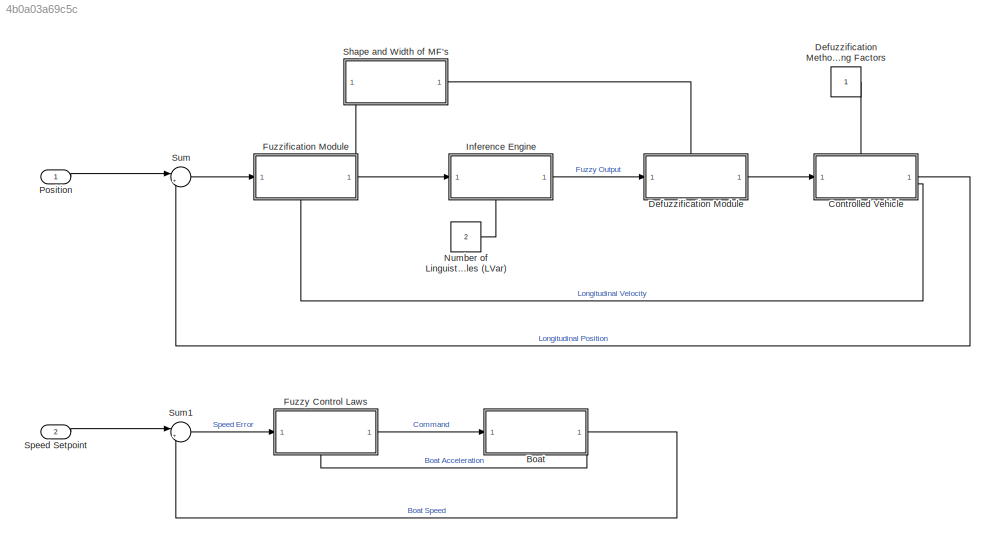
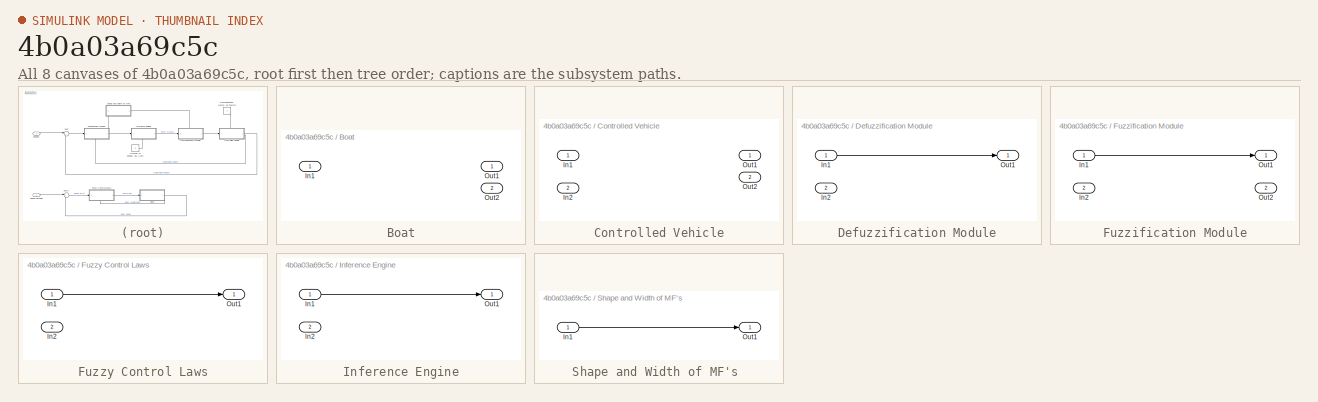
[diagram: thumbnail index - all 8 canvases of the model, root first then tree order]
MODEL slx_4b0a03a69c5c
KIND model
CONFIG AbsTol = auto
CONFIG EnableMultiTasking = off
CONFIG FixedStep = auto
CONFIG MaxStep = auto
CONFIG MinStep = auto
CONFIG RelTol = 1e-3
CONFIG SampleTimeConstraint = Unconstrained
CONFIG SolverName = VariableStepAuto
CONFIG StartTime = 0.0
CONFIG StopTime = 10.0
BLOCK [SubSystem] Boat
BLOCK [Inport] Boat/In1
BLOCK [Outport] Boat/Out1
BLOCK [Outport] Boat/Out2
  Port = 2
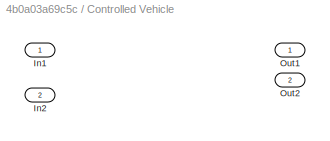
BLOCK [SubSystem] Controlled Vehicle
  PortSchema = {"entries":[{"content":{"sides":[{"content":{"connectorIds":["In1"]},"type":"ConnectorPlacement.EquallySpacedRectSide","uuid":"75031ec6-9104-4087-b797-3cb6d5dd7208"},{"content":{"connectorIds":["Out1","Out2"],"side":"RIGHT"},"type":"ConnectorPlacement.EquallySpacedRectSide","uuid":"3dfb78db-9d63-4fd3-8e8c-d4df3b38d0df"},{"content":{"connectorIds":["In2"],"side":"TOP"},"type":"ConnectorPlacement.Eq...<+252ch>
BLOCK [Inport] Controlled Vehicle/In1
BLOCK [Inport] Controlled Vehicle/In2
  Port = 2
BLOCK [Outport] Controlled Vehicle/Out1
BLOCK [Outport] Controlled Vehicle/Out2
  Port = 2
BLOCK [Constant] Defuzzification Method Scaling Factors
BLOCK [SubSystem] Defuzzification Module
  PortSchema = {"entries":[{"content":{"sides":[{"content":{"connectorIds":["In1"]},"type":"ConnectorPlacement.EquallySpacedRectSide","uuid":"328a4e44-e2ad-4c9f-8b0f-f73f2e04e1bb"},{"content":{"connectorIds":["Out1"],"side":"RIGHT"},"type":"ConnectorPlacement.EquallySpacedRectSide","uuid":"a69217c7-f31c-440f-b132-e8738ed85aa0"},{"content":{"connectorIds":["In2"],"side":"TOP"},"type":"ConnectorPlacement.EquallySp...<+245ch>
BLOCK [Inport] Defuzzification Module/In1
BLOCK [Inport] Defuzzification Module/In2
  Port = 2
BLOCK [Outport] Defuzzification Module/Out1
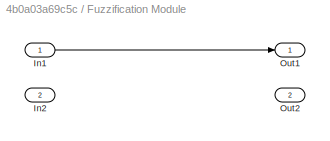
BLOCK [SubSystem] Fuzzification Module
  PortSchema = {"entries":[{"content":{"sides":[{"content":{"connectorIds":["In1"]},"type":"ConnectorPlacement.EquallySpacedRectSide","uuid":"328a4e44-e2ad-4c9f-8b0f-f73f2e04e1bb"},{"content":{"connectorIds":["Out1"],"side":"RIGHT"},"type":"ConnectorPlacement.EquallySpacedRectSide","uuid":"a69217c7-f31c-440f-b132-e8738ed85aa0"},{"content":{"connectorIds":["Out2"],"side":"TOP"},"type":"ConnectorPlacement.EquallyS...<+395ch>
BLOCK [Inport] Fuzzification Module/In1
BLOCK [Inport] Fuzzification Module/In2
  Port = 2
BLOCK [Outport] Fuzzification Module/Out1
BLOCK [Outport] Fuzzification Module/Out2
  Port = 2
BLOCK [SubSystem] Fuzzy Control Laws
  PortSchema = {"entries":[{"content":{"sides":[{"content":{"connectorIds":["In1"]},"type":"ConnectorPlacement.EquallySpacedRectSide","uuid":"328a4e44-e2ad-4c9f-8b0f-f73f2e04e1bb"},{"content":{"connectorIds":["Out1"],"side":"RIGHT"},"type":"ConnectorPlacement.EquallySpacedRectSide","uuid":"a69217c7-f31c-440f-b132-e8738ed85aa0"},{"content":{"connectorIds":[],"side":"TOP"},"type":"ConnectorPlacement.EquallySpacedR...<+389ch>
BLOCK [Inport] Fuzzy Control Laws/In1
BLOCK [Inport] Fuzzy Control Laws/In2
  Port = 2
BLOCK [Outport] Fuzzy Control Laws/Out1
BLOCK [SubSystem] Inference Engine
  PortSchema = {"entries":[{"content":{"sides":[{"content":{"connectorIds":["In1"]},"type":"ConnectorPlacement.EquallySpacedRectSide","uuid":"328a4e44-e2ad-4c9f-8b0f-f73f2e04e1bb"},{"content":{"connectorIds":["Out1"],"side":"RIGHT"},"type":"ConnectorPlacement.EquallySpacedRectSide","uuid":"a69217c7-f31c-440f-b132-e8738ed85aa0"},{"content":{"connectorIds":[],"side":"TOP"},"type":"ConnectorPlacement.EquallySpacedR...<+389ch>
BLOCK [Inport] Inference Engine/In1
BLOCK [Inport] Inference Engine/In2
  Port = 2
BLOCK [Outport] Inference Engine/Out1
BLOCK [Constant] Number of Linguistic Variables (LVar)
  Value = 2
BLOCK [Inport] Position
BLOCK [SubSystem] Shape and Width of MF's 
BLOCK [Inport] Shape and Width of MF's /In1
BLOCK [Outport] Shape and Width of MF's /Out1
BLOCK [Inport] Speed Setpoint
  Port = 2
BLOCK [Sum] Sum
  Inputs = |+-
BLOCK [Sum] Sum1
  Inputs = |+-
LINE Boat:1 -> Sum1:2
LINE Boat:2 -> Fuzzy Control Laws:2
LINE Controlled Vehicle:1 -> Sum:2
LINE Controlled Vehicle:2 -> Fuzzification Module:2
LINE Defuzzification Method Scaling Factors:1 -> Controlled Vehicle:2
LINE Defuzzification Module/In1:1 -> Defuzzification Module/Out1:1
LINE Defuzzification Module:1 -> Controlled Vehicle:1
LINE Fuzzification Module/In1:1 -> Fuzzification Module/Out1:1
LINE Fuzzification Module:1 -> Inference Engine:1
LINE Fuzzification Module:2 -> Shape and Width of MF's :1
LINE Fuzzy Control Laws/In1:1 -> Fuzzy Control Laws/Out1:1
LINE Fuzzy Control Laws:1 -> Boat:1
LINE Inference Engine/In1:1 -> Inference Engine/Out1:1
LINE Inference Engine:1 -> Defuzzification Module:1
LINE Number of Linguistic Variables (LVar):1 -> Inference Engine:2
LINE Position:1 -> Sum:1
LINE Shape and Width of MF's /In1:1 -> Shape and Width of MF's /Out1:1
LINE Shape and Width of MF's :1 -> Defuzzification Module:2
LINE Speed Setpoint:1 -> Sum1:1
LINE Sum1:1 -> Fuzzy Control Laws:1
LINE Sum:1 -> Fuzzification Module:1
